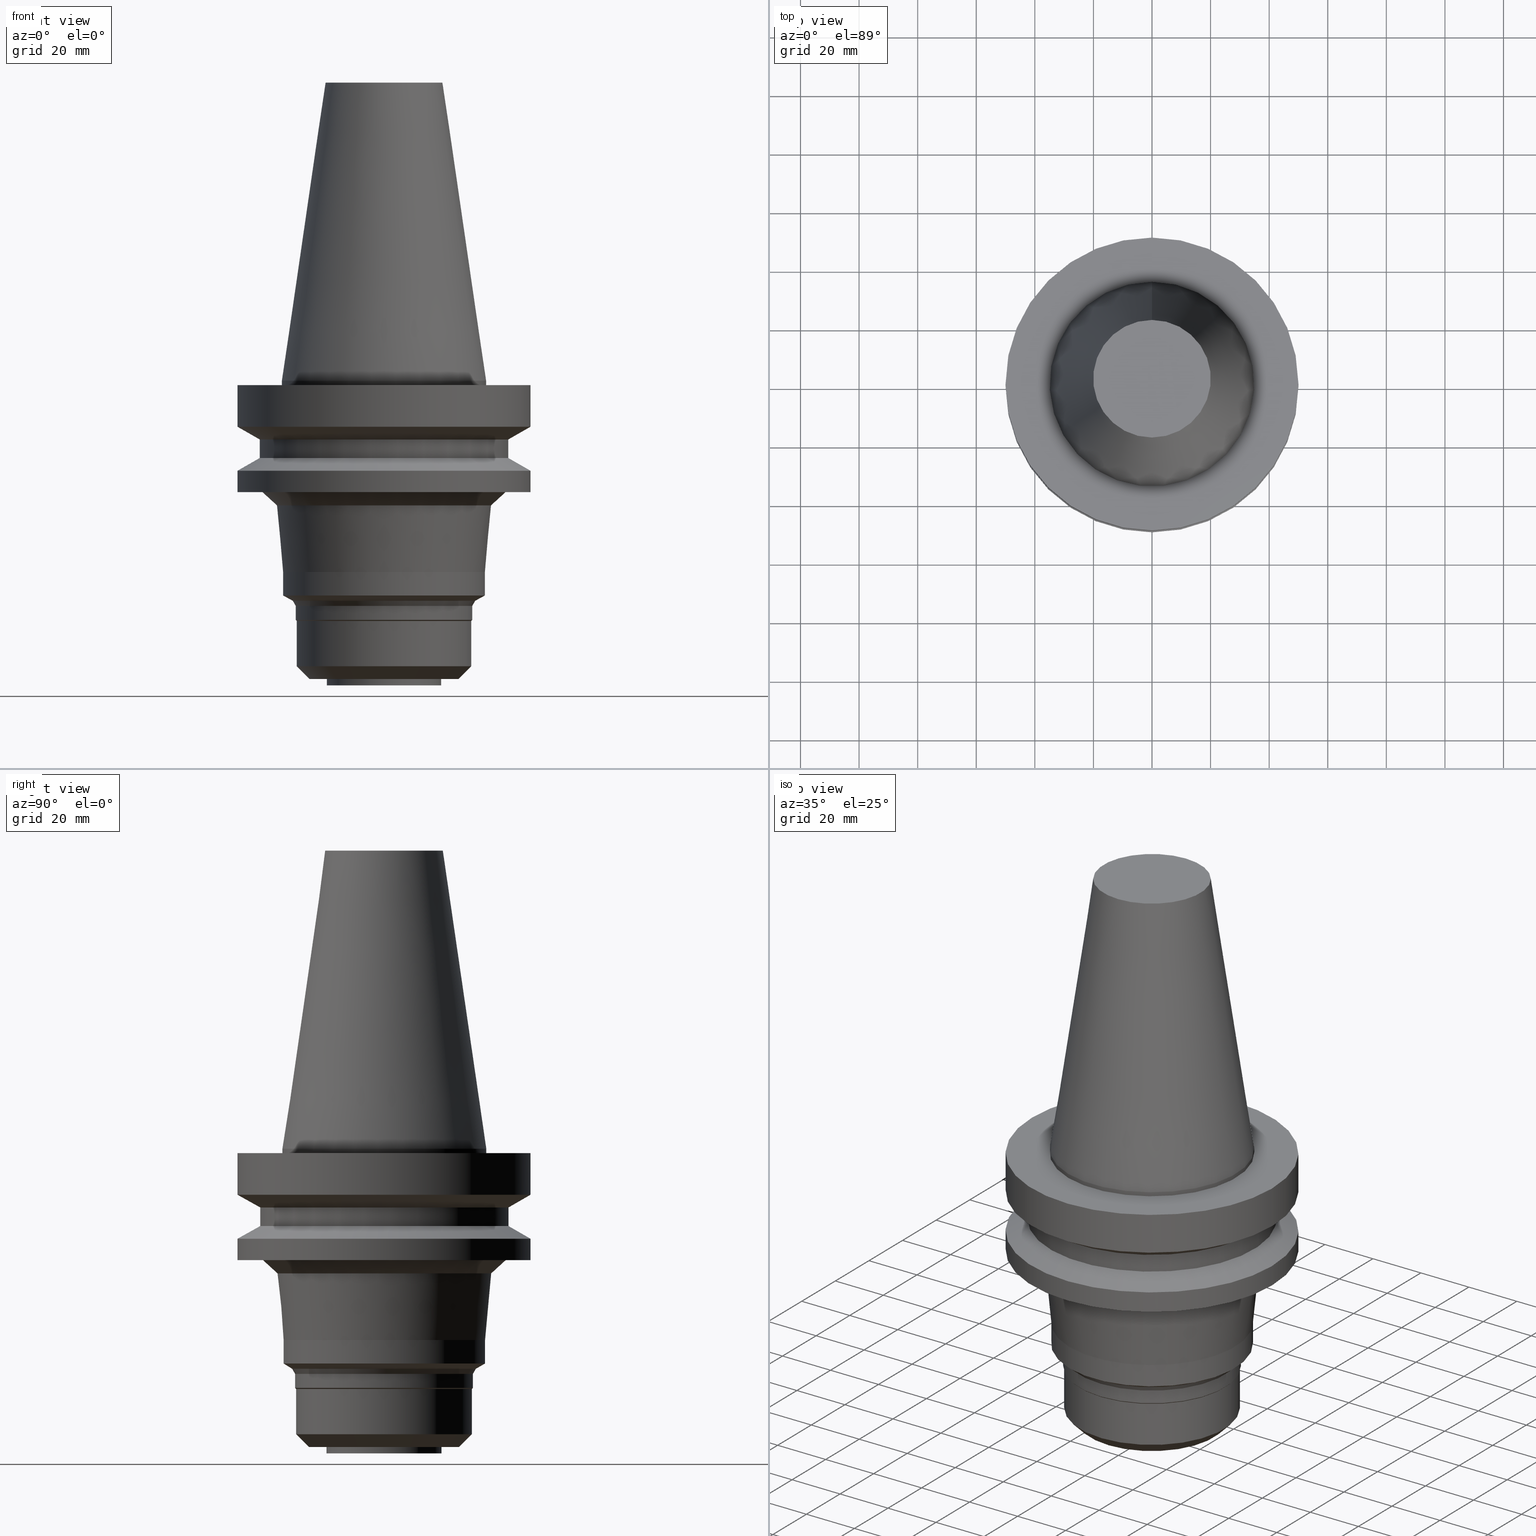
[diagram: canonical four-view strip — front | top / right | iso, engineering-drawing reading convention]
A machine part, canonical four-view strip (front | top / right | iso — engineering-drawing reading convention). The complete STEP part file that produces these views, byte-faithful:
ISO-10303-21;
HEADER;
FILE_DESCRIPTION((''),'1');
FILE_NAME('V:/90_\X2\53D65F9730C730FC30BF\X0\/00_\X2\6DE18DEF30C730FC30BF\X0\/ALL/BBT-BKUS\X2\FF76FF80FF9BFF78FF9E752852A05DE556F3\X0\201801/BBT50-MEGADS/BBT50-MEGA.750DS-4.stp','2018-02-05T01:23:30',(''),(''),'Spatial Interop R21 SP3','Kubotek KeyCreator 2011 V10.0.2 (22737)',' ');
FILE_SCHEMA(('automotive_design'));
ENDSEC;
DATA;
#1=MECHANICAL_DESIGN_GEOMETRIC_PRESENTATION_REPRESENTATION(' ',(#10,#11,#12,#13,#14,#15,#16,#17,#18,#19,#20,#21,#22,#23,#24,#25,#26,#27,#28,#29,#30,#31,#32,#33,#34,#35,#36,#37,#38,#39,#40,#41,#42,#43,#44,#45,#46,#47,#48,#49,#50,#51,#52,#53),#6);
#2=PRODUCT_DEFINITION_CONTEXT('',#54,'design');
#3=APPLICATION_PROTOCOL_DEFINITION('INTERNATIONAL STANDARD','automotive_design',1994,#54);
#4=PRODUCT_CATEGORY_RELATIONSHIP('NONE','NONE',#55,#56);
#5=SHAPE_DEFINITION_REPRESENTATION(#57,#58);
#6= (GEOMETRIC_REPRESENTATION_CONTEXT(3)GLOBAL_UNCERTAINTY_ASSIGNED_CONTEXT((#61))GLOBAL_UNIT_ASSIGNED_CONTEXT((#63,#64,#65))REPRESENTATION_CONTEXT('NONE','WORKSPACE'));
#10=STYLED_ITEM('',(#67),#68);
#11=STYLED_ITEM('',(#69,#70),#71);
#12=STYLED_ITEM('',(#72,#73),#74);
#13=STYLED_ITEM('',(#75),#76);
#14=STYLED_ITEM('',(#77),#78);
#15=STYLED_ITEM('',(#79),#80);
#16=STYLED_ITEM('',(#81),#82);
#17=STYLED_ITEM('',(#83),#84);
#18=STYLED_ITEM('',(#85),#86);
#19=STYLED_ITEM('',(#87,#88),#89);
#20=STYLED_ITEM('',(#90),#91);
#21=STYLED_ITEM('',(#92,#93),#94);
#22=STYLED_ITEM('',(#95,#96),#97);
#23=STYLED_ITEM('',(#98),#99);
#24=STYLED_ITEM('',(#100,#101),#102);
#25=STYLED_ITEM('',(#103,#104),#105);
#26=STYLED_ITEM('',(#106),#107);
#27=STYLED_ITEM('',(#108),#109);
#28=STYLED_ITEM('',(#110),#111);
#29=STYLED_ITEM('',(#112),#113);
#30=STYLED_ITEM('',(#114,#115),#116);
#31=STYLED_ITEM('',(#117,#118),#119);
#32=STYLED_ITEM('',(#120,#121),#122);
#33=STYLED_ITEM('',(#123),#124);
#34=STYLED_ITEM('',(#125,#126),#127);
#35=STYLED_ITEM('',(#128,#129),#130);
#36=STYLED_ITEM('',(#131,#132),#133);
#37=STYLED_ITEM('',(#134),#135);
#38=STYLED_ITEM('',(#136,#137),#138);
#39=STYLED_ITEM('',(#139),#140);
#40=STYLED_ITEM('',(#141,#142),#143);
#41=STYLED_ITEM('',(#144,#145),#146);
#42=STYLED_ITEM('',(#147,#148),#149);
#43=STYLED_ITEM('',(#150,#151),#152);
#44=STYLED_ITEM('',(#153),#154);
#45=STYLED_ITEM('',(#155),#156);
#46=STYLED_ITEM('',(#157),#158);
#47=STYLED_ITEM('',(#159),#160);
#48=STYLED_ITEM('',(#161,#162),#163);
#49=STYLED_ITEM('',(#164,#165),#166);
#50=STYLED_ITEM('',(#167,#168),#169);
#51=STYLED_ITEM('',(#170,#171),#172);
#52=STYLED_ITEM('',(#173,#174),#175);
#53=STYLED_ITEM('',(#176),#177);
#54=APPLICATION_CONTEXT(' ');
#55=PRODUCT_CATEGORY('part','NONE');
#56=PRODUCT_RELATED_PRODUCT_CATEGORY('detail',' ',(#178));
#57=PRODUCT_DEFINITION_SHAPE('NONE','NONE',#179);
#58=ADVANCED_BREP_SHAPE_REPRESENTATION('Unnamed[1]',(#89,#180),#6);
#61=UNCERTAINTY_MEASURE_WITH_UNIT(LENGTH_MEASURE(1.0E-006),#63,'','');
#63= (CONVERSION_BASED_UNIT('MILLIMETRE',#183)LENGTH_UNIT()NAMED_UNIT(#186));
#64= (NAMED_UNIT(#188)PLANE_ANGLE_UNIT()SI_UNIT($,.RADIAN.));
#65= (NAMED_UNIT(#188)SOLID_ANGLE_UNIT()SI_UNIT($,.STERADIAN.));
#67=PRESENTATION_STYLE_ASSIGNMENT((#194));
#68=EDGE_CURVE('Unnamed[1]',#195,#195,#196,.T.);
#69=PRESENTATION_STYLE_ASSIGNMENT((#197));
#70=PRESENTATION_STYLE_ASSIGNMENT((#198));
#71=ADVANCED_FACE('Unnamed[1]',(#199),#200,.T.);
#72=PRESENTATION_STYLE_ASSIGNMENT((#201));
#73=PRESENTATION_STYLE_ASSIGNMENT((#202));
#74=ADVANCED_FACE('Unnamed[1]',(#203,#204),#205,.T.);
#75=PRESENTATION_STYLE_ASSIGNMENT((#206));
#76=EDGE_CURVE('Unnamed[1]',#207,#207,#208,.T.);
#77=PRESENTATION_STYLE_ASSIGNMENT((#209));
#78=EDGE_CURVE('Unnamed[1]',#210,#210,#211,.T.);
#79=PRESENTATION_STYLE_ASSIGNMENT((#212));
#80=EDGE_CURVE('Unnamed[1]',#213,#213,#214,.T.);
#81=PRESENTATION_STYLE_ASSIGNMENT((#215));
#82=EDGE_CURVE('Unnamed[1]',#216,#216,#217,.T.);
#83=PRESENTATION_STYLE_ASSIGNMENT((#218));
#84=EDGE_CURVE('Unnamed[1]',#219,#219,#220,.T.);
#85=PRESENTATION_STYLE_ASSIGNMENT((#221));
#86=EDGE_CURVE('Unnamed[1]',#222,#222,#223,.T.);
#87=PRESENTATION_STYLE_ASSIGNMENT((#224));
#88=PRESENTATION_STYLE_ASSIGNMENT((#225));
#89=MANIFOLD_SOLID_BREP('Unnamed[1]',#226);
#90=PRESENTATION_STYLE_ASSIGNMENT((#227));
#91=EDGE_CURVE('Unnamed[1]',#228,#228,#229,.T.);
#92=PRESENTATION_STYLE_ASSIGNMENT((#230));
#93=PRESENTATION_STYLE_ASSIGNMENT((#231));
#94=ADVANCED_FACE('Unnamed[1]',(#232,#233),#234,.T.);
#95=PRESENTATION_STYLE_ASSIGNMENT((#235));
#96=PRESENTATION_STYLE_ASSIGNMENT((#236));
#97=ADVANCED_FACE('Unnamed[1]',(#237,#238),#239,.T.);
#98=PRESENTATION_STYLE_ASSIGNMENT((#240));
#99=EDGE_CURVE('Unnamed[1]',#241,#241,#242,.T.);
#100=PRESENTATION_STYLE_ASSIGNMENT((#243));
#101=PRESENTATION_STYLE_ASSIGNMENT((#244));
#102=ADVANCED_FACE('Unnamed[1]',(#245,#246),#247,.T.);
#103=PRESENTATION_STYLE_ASSIGNMENT((#248));
#104=PRESENTATION_STYLE_ASSIGNMENT((#249));
#105=ADVANCED_FACE('Unnamed[1]',(#250,#251),#252,.T.);
#106=PRESENTATION_STYLE_ASSIGNMENT((#253));
#107=EDGE_CURVE('Unnamed[1]',#254,#254,#255,.T.);
#108=PRESENTATION_STYLE_ASSIGNMENT((#256));
#109=EDGE_CURVE('Unnamed[1]',#257,#257,#258,.T.);
#110=PRESENTATION_STYLE_ASSIGNMENT((#259));
#111=EDGE_CURVE('Unnamed[1]',#260,#260,#261,.T.);
#112=PRESENTATION_STYLE_ASSIGNMENT((#262));
#113=EDGE_CURVE('Unnamed[1]',#263,#263,#264,.T.);
#114=PRESENTATION_STYLE_ASSIGNMENT((#265));
#115=PRESENTATION_STYLE_ASSIGNMENT((#266));
#116=ADVANCED_FACE('Unnamed[1]',(#267,#268),#269,.T.);
#117=PRESENTATION_STYLE_ASSIGNMENT((#270));
#118=PRESENTATION_STYLE_ASSIGNMENT((#271));
#119=ADVANCED_FACE('Unnamed[1]',(#272,#273),#274,.T.);
#120=PRESENTATION_STYLE_ASSIGNMENT((#275));
#121=PRESENTATION_STYLE_ASSIGNMENT((#276));
#122=ADVANCED_FACE('Unnamed[1]',(#277,#278),#279,.T.);
#123=PRESENTATION_STYLE_ASSIGNMENT((#280));
#124=EDGE_CURVE('Unnamed[1]',#281,#281,#282,.T.);
#125=PRESENTATION_STYLE_ASSIGNMENT((#283));
#126=PRESENTATION_STYLE_ASSIGNMENT((#284));
#127=ADVANCED_FACE('Unnamed[1]',(#285,#286),#287,.T.);
#128=PRESENTATION_STYLE_ASSIGNMENT((#288));
#129=PRESENTATION_STYLE_ASSIGNMENT((#289));
#130=ADVANCED_FACE('Unnamed[1]',(#290,#291),#292,.T.);
#131=PRESENTATION_STYLE_ASSIGNMENT((#293));
#132=PRESENTATION_STYLE_ASSIGNMENT((#294));
#133=ADVANCED_FACE('Unnamed[1]',(#295,#296),#297,.T.);
#134=PRESENTATION_STYLE_ASSIGNMENT((#298));
#135=EDGE_CURVE('Unnamed[1]',#299,#299,#300,.T.);
#136=PRESENTATION_STYLE_ASSIGNMENT((#301));
#137=PRESENTATION_STYLE_ASSIGNMENT((#302));
#138=ADVANCED_FACE('Unnamed[1]',(#303,#304),#305,.T.);
#139=PRESENTATION_STYLE_ASSIGNMENT((#306));
#140=EDGE_CURVE('Unnamed[1]',#307,#307,#308,.T.);
#141=PRESENTATION_STYLE_ASSIGNMENT((#309));
#142=PRESENTATION_STYLE_ASSIGNMENT((#310));
#143=ADVANCED_FACE('Unnamed[1]',(#311,#312),#313,.T.);
#144=PRESENTATION_STYLE_ASSIGNMENT((#314));
#145=PRESENTATION_STYLE_ASSIGNMENT((#315));
#146=ADVANCED_FACE('Unnamed[1]',(#316,#317),#318,.T.);
#147=PRESENTATION_STYLE_ASSIGNMENT((#319));
#148=PRESENTATION_STYLE_ASSIGNMENT((#320));
#149=ADVANCED_FACE('Unnamed[1]',(#321,#322),#323,.T.);
#150=PRESENTATION_STYLE_ASSIGNMENT((#324));
#151=PRESENTATION_STYLE_ASSIGNMENT((#325));
#152=ADVANCED_FACE('Unnamed[1]',(#326),#327,.T.);
#153=PRESENTATION_STYLE_ASSIGNMENT((#328));
#154=EDGE_CURVE('Unnamed[1]',#329,#329,#330,.T.);
#155=PRESENTATION_STYLE_ASSIGNMENT((#331));
#156=EDGE_CURVE('Unnamed[1]',#332,#332,#333,.T.);
#157=PRESENTATION_STYLE_ASSIGNMENT((#334));
#158=EDGE_CURVE('Unnamed[1]',#335,#335,#336,.T.);
#159=PRESENTATION_STYLE_ASSIGNMENT((#337));
#160=EDGE_CURVE('Unnamed[1]',#338,#338,#339,.T.);
#161=PRESENTATION_STYLE_ASSIGNMENT((#340));
#162=PRESENTATION_STYLE_ASSIGNMENT((#341));
#163=ADVANCED_FACE('Unnamed[1]',(#342,#343),#344,.T.);
#164=PRESENTATION_STYLE_ASSIGNMENT((#345));
#165=PRESENTATION_STYLE_ASSIGNMENT((#346));
#166=ADVANCED_FACE('Unnamed[1]',(#347,#348),#349,.T.);
#167=PRESENTATION_STYLE_ASSIGNMENT((#350));
#168=PRESENTATION_STYLE_ASSIGNMENT((#351));
#169=ADVANCED_FACE('Unnamed[1]',(#352,#353),#354,.T.);
#170=PRESENTATION_STYLE_ASSIGNMENT((#355));
#171=PRESENTATION_STYLE_ASSIGNMENT((#356));
#172=ADVANCED_FACE('Unnamed[1]',(#357,#358),#359,.T.);
#173=PRESENTATION_STYLE_ASSIGNMENT((#360));
#174=PRESENTATION_STYLE_ASSIGNMENT((#361));
#175=ADVANCED_FACE('Unnamed[1]',(#362,#363),#364,.T.);
#176=PRESENTATION_STYLE_ASSIGNMENT((#365));
#177=EDGE_CURVE('Unnamed[1]',#366,#366,#367,.T.);
#178=PRODUCT('Unnamed[1]','Unnamed[1]','PART-Unnamed[1]-DESC',(#368));
#179=PRODUCT_DEFINITION('NONE','NONE',#369,#2);
#180=AXIS2_PLACEMENT_3D('',#370,#371,#372);
#183=LENGTH_MEASURE_WITH_UNIT(LENGTH_MEASURE(1.0),#373);
#186=DIMENSIONAL_EXPONENTS(1.0,0.0,0.0,0.0,0.0,0.0,0.0);
#188=DIMENSIONAL_EXPONENTS(0.0,0.0,0.0,0.0,0.0,0.0,0.0);
#194=CURVE_STYLE('',#374,POSITIVE_LENGTH_MEASURE(1000.0),#375);
#195=VERTEX_POINT('',#376);
#196=CIRCLE('',#377,34.4999999999997);
#197=SURFACE_STYLE_USAGE(.BOTH.,#378);
#198=CURVE_STYLE('',#379,POSITIVE_LENGTH_MEASURE(1000.0),#380);
#199=FACE_OUTER_BOUND('',#381,.T.);
#200=PLANE('',#382);
#201=SURFACE_STYLE_USAGE(.BOTH.,#383);
#202=CURVE_STYLE('',#384,POSITIVE_LENGTH_MEASURE(1000.0),#385);
#203=FACE_BOUND('',#386,.T.);
#204=FACE_BOUND('',#387,.T.);
#205=CONICAL_SURFACE('',#388,32.9249999999997,1.04719755119622);
#206=CURVE_STYLE('',#389,POSITIVE_LENGTH_MEASURE(1000.0),#390);
#207=VERTEX_POINT('',#391);
#208=CIRCLE('',#392,34.925);
#209=CURVE_STYLE('',#393,POSITIVE_LENGTH_MEASURE(1000.0),#394);
#210=VERTEX_POINT('',#395);
#211=CIRCLE('',#396,30.3500000000003);
#212=CURVE_STYLE('',#397,POSITIVE_LENGTH_MEASURE(1000.0),#398);
#213=VERTEX_POINT('',#399);
#214=CIRCLE('',#400,30.0000000000001);
#215=CURVE_STYLE('',#401,POSITIVE_LENGTH_MEASURE(1000.0),#402);
#216=VERTEX_POINT('',#403);
#217=CIRCLE('',#404,36.5837822119292);
#218=CURVE_STYLE('',#405,POSITIVE_LENGTH_MEASURE(1000.0),#406);
#219=VERTEX_POINT('',#407);
#220=CIRCLE('',#408,50.0);
#221=CURVE_STYLE('',#409,POSITIVE_LENGTH_MEASURE(1000.0),#410);
#222=VERTEX_POINT('',#411);
#223=CIRCLE('',#412,20.0791666651884);
#224=SURFACE_STYLE_USAGE(.BOTH.,#413);
#225=CURVE_STYLE('',#414,POSITIVE_LENGTH_MEASURE(1000.0),#415);
#226=CLOSED_SHELL('',(#71,#94,#175,#146,#97,#163,#172,#138,#133,#166,#149,#116,#169,#74,#119,#130,#122,#105,#102,#127,#143,#152));
#227=CURVE_STYLE('',#416,POSITIVE_LENGTH_MEASURE(1000.0),#417);
#228=VERTEX_POINT('',#418);
#229=CIRCLE('',#419,19.625107076497);
#230=SURFACE_STYLE_USAGE(.BOTH.,#420);
#231=CURVE_STYLE('',#421,POSITIVE_LENGTH_MEASURE(1000.0),#422);
#232=FACE_BOUND('',#423,.T.);
#233=FACE_BOUND('',#424,.T.);
#234=CONICAL_SURFACE('',#425,27.5020833325942,0.144812498253157);
#235=SURFACE_STYLE_USAGE(.BOTH.,#426);
#236=CURVE_STYLE('',#427,POSITIVE_LENGTH_MEASURE(1000.0),#428);
#237=FACE_BOUND('',#429,.T.);
#238=FACE_BOUND('',#430,.T.);
#239=CYLINDRICAL_SURFACE('',#431,50.0);
#240=CURVE_STYLE('',#432,POSITIVE_LENGTH_MEASURE(1000.0),#433);
#241=VERTEX_POINT('',#434);
#242=CIRCLE('',#435,25.6553860970346);
#243=SURFACE_STYLE_USAGE(.BOTH.,#436);
#244=CURVE_STYLE('',#437,POSITIVE_LENGTH_MEASURE(1000.0),#438);
#245=FACE_BOUND('',#439,.T.);
#246=FACE_BOUND('',#440,.T.);
#247=CONICAL_SURFACE('',#441,27.8276930485173,0.785398163397472);
#248=SURFACE_STYLE_USAGE(.BOTH.,#442);
#249=CURVE_STYLE('',#443,POSITIVE_LENGTH_MEASURE(1000.0),#444);
#250=FACE_BOUND('',#445,.T.);
#251=FACE_BOUND('',#446,.T.);
#252=CYLINDRICAL_SURFACE('',#447,30.0000000000001);
#253=CURVE_STYLE('',#448,POSITIVE_LENGTH_MEASURE(1000.0),#449);
#254=VERTEX_POINT('',#450);
#255=CIRCLE('',#451,42.5);
#256=CURVE_STYLE('',#452,POSITIVE_LENGTH_MEASURE(1000.0),#453);
#257=VERTEX_POINT('',#454);
#258=CIRCLE('',#455,30.3499999999999);
#259=CURVE_STYLE('',#456,POSITIVE_LENGTH_MEASURE(1000.0),#457);
#260=VERTEX_POINT('',#458);
#261=CIRCLE('',#459,50.0);
#262=CURVE_STYLE('',#460,POSITIVE_LENGTH_MEASURE(1000.0),#461);
#263=VERTEX_POINT('',#462);
#264=CIRCLE('',#463,41.5643345023417);
#265=SURFACE_STYLE_USAGE(.BOTH.,#464);
#266=CURVE_STYLE('',#465,POSITIVE_LENGTH_MEASURE(1000.0),#466);
#267=FACE_BOUND('',#467,.T.);
#268=FACE_BOUND('',#468,.T.);
#269=CONICAL_SURFACE('',#469,35.5418911059647,0.0913203890861967);
#270=SURFACE_STYLE_USAGE(.BOTH.,#470);
#271=CURVE_STYLE('',#471,POSITIVE_LENGTH_MEASURE(1000.0),#472);
#272=FACE_BOUND('',#473,.T.);
#273=FACE_BOUND('',#474,.T.);
#274=CONICAL_SURFACE('',#475,30.85,0.52359877559814);
#275=SURFACE_STYLE_USAGE(.BOTH.,#476);
#276=CURVE_STYLE('',#477,POSITIVE_LENGTH_MEASURE(1000.0),#478);
#277=FACE_BOUND('',#479,.T.);
#278=FACE_BOUND('',#480,.T.);
#279=CONICAL_SURFACE('',#481,30.175,0.785398163396494);
#280=CURVE_STYLE('',#482,POSITIVE_LENGTH_MEASURE(1000.0),#483);
#281=VERTEX_POINT('',#484);
#282=CIRCLE('',#485,31.3499999999997);
#283=SURFACE_STYLE_USAGE(.BOTH.,#486);
#284=CURVE_STYLE('',#487,POSITIVE_LENGTH_MEASURE(1000.0),#488);
#285=FACE_BOUND('',#489,.T.);
#286=FACE_OUTER_BOUND('',#490,.T.);
#287=PLANE('',#491);
#288=SURFACE_STYLE_USAGE(.BOTH.,#492);
#289=CURVE_STYLE('',#493,POSITIVE_LENGTH_MEASURE(1000.0),#494);
#290=FACE_BOUND('',#495,.T.);
#291=FACE_BOUND('',#496,.T.);
#292=CYLINDRICAL_SURFACE('',#497,30.3500000000001);
#293=SURFACE_STYLE_USAGE(.BOTH.,#498);
#294=CURVE_STYLE('',#499,POSITIVE_LENGTH_MEASURE(1000.0),#500);
#295=FACE_BOUND('',#501,.T.);
#296=FACE_BOUND('',#502,.T.);
#297=CYLINDRICAL_SURFACE('',#503,50.0);
#298=CURVE_STYLE('',#504,POSITIVE_LENGTH_MEASURE(1000.0),#505);
#299=VERTEX_POINT('',#506);
#300=CIRCLE('',#507,34.925);
#301=SURFACE_STYLE_USAGE(.BOTH.,#508);
#302=CURVE_STYLE('',#509,POSITIVE_LENGTH_MEASURE(1000.0),#510);
#303=FACE_BOUND('',#511,.T.);
#304=FACE_BOUND('',#512,.T.);
#305=CONICAL_SURFACE('',#513,46.25,1.04719755108882);
#306=CURVE_STYLE('',#514,POSITIVE_LENGTH_MEASURE(1000.0),#515);
#307=VERTEX_POINT('',#516);
#308=CIRCLE('',#517,42.5);
#309=SURFACE_STYLE_USAGE(.BOTH.,#518);
#310=CURVE_STYLE('',#519,POSITIVE_LENGTH_MEASURE(1000.0),#520);
#311=FACE_BOUND('',#521,.T.);
#312=FACE_BOUND('',#522,.T.);
#313=CYLINDRICAL_SURFACE('',#523,19.625107076497);
#314=SURFACE_STYLE_USAGE(.BOTH.,#524);
#315=CURVE_STYLE('',#525,POSITIVE_LENGTH_MEASURE(1000.0),#526);
#316=FACE_OUTER_BOUND('',#527,.T.);
#317=FACE_BOUND('',#528,.T.);
#318=PLANE('',#529);
#319=SURFACE_STYLE_USAGE(.BOTH.,#530);
#320=CURVE_STYLE('',#531,POSITIVE_LENGTH_MEASURE(1000.0),#532);
#321=FACE_BOUND('',#533,.T.);
#322=FACE_BOUND('',#534,.T.);
#323=CONICAL_SURFACE('',#535,39.0740583571355,0.831080197610468);
#324=SURFACE_STYLE_USAGE(.BOTH.,#536);
#325=CURVE_STYLE('',#537,POSITIVE_LENGTH_MEASURE(1000.0),#538);
#326=FACE_OUTER_BOUND('',#539,.T.);
#327=PLANE('',#540);
#328=CURVE_STYLE('',#541,POSITIVE_LENGTH_MEASURE(1000.0),#542);
#329=VERTEX_POINT('',#543);
#330=CIRCLE('',#544,50.0);
#331=CURVE_STYLE('',#545,POSITIVE_LENGTH_MEASURE(1000.0),#546);
#332=VERTEX_POINT('',#547);
#333=CIRCLE('',#548,34.5000000000001);
#334=CURVE_STYLE('',#549,POSITIVE_LENGTH_MEASURE(1000.0),#550);
#335=VERTEX_POINT('',#551);
#336=CIRCLE('',#552,30.0);
#337=CURVE_STYLE('',#553,POSITIVE_LENGTH_MEASURE(1000.0),#554);
#338=VERTEX_POINT('',#555);
#339=CIRCLE('',#556,19.625107076497);
#340=SURFACE_STYLE_USAGE(.BOTH.,#557);
#341=CURVE_STYLE('',#558,POSITIVE_LENGTH_MEASURE(1000.0),#559);
#342=FACE_BOUND('',#560,.T.);
#343=FACE_BOUND('',#561,.T.);
#344=CONICAL_SURFACE('',#562,46.25,1.04719755108882);
#345=SURFACE_STYLE_USAGE(.BOTH.,#563);
#346=CURVE_STYLE('',#564,POSITIVE_LENGTH_MEASURE(1000.0),#565);
#347=FACE_BOUND('',#566,.T.);
#348=FACE_OUTER_BOUND('',#567,.T.);
#349=PLANE('',#568);
#350=SURFACE_STYLE_USAGE(.BOTH.,#569);
#351=CURVE_STYLE('',#570,POSITIVE_LENGTH_MEASURE(1000.0),#571);
#352=FACE_BOUND('',#572,.T.);
#353=FACE_BOUND('',#573,.T.);
#354=CYLINDRICAL_SURFACE('',#574,34.4999999999999);
#355=SURFACE_STYLE_USAGE(.BOTH.,#575);
#356=CURVE_STYLE('',#576,POSITIVE_LENGTH_MEASURE(1000.0),#577);
#357=FACE_BOUND('',#578,.T.);
#358=FACE_BOUND('',#579,.T.);
#359=CYLINDRICAL_SURFACE('',#580,42.5);
#360=SURFACE_STYLE_USAGE(.BOTH.,#581);
#361=CURVE_STYLE('',#582,POSITIVE_LENGTH_MEASURE(1000.0),#583);
#362=FACE_BOUND('',#584,.T.);
#363=FACE_BOUND('',#585,.T.);
#364=CYLINDRICAL_SURFACE('',#586,34.925);
#365=CURVE_STYLE('',#587,POSITIVE_LENGTH_MEASURE(1000.0),#588);
#366=VERTEX_POINT('',#589);
#367=CIRCLE('',#590,50.0);
#368=PRODUCT_CONTEXT('',#54,'mechanical');
#369=PRODUCT_DEFINITION_FORMATION_WITH_SPECIFIED_SOURCE(' ','NONE',#178,.NOT_KNOWN.);
#370=CARTESIAN_POINT('',(0.0,0.0,0.0));
#371=DIRECTION('',(0.0,0.0,1.0));
#372=DIRECTION('',(1.0,0.0,0.0));
#373= (NAMED_UNIT(#186)LENGTH_UNIT()SI_UNIT(.MILLI.,.METRE.));
#374=DRAUGHTING_PRE_DEFINED_CURVE_FONT('continuous');
#375=COLOUR_RGB('',0.0,1.0,0.0);
#376=CARTESIAN_POINT('',(4.48833051887502E-015,34.4999999999997,-73.2999999999996));
#377=AXIS2_PLACEMENT_3D('',#592,#593,#594);
#378=SURFACE_SIDE_STYLE('',(#595));
#379=DRAUGHTING_PRE_DEFINED_CURVE_FONT('continuous');
#380=COLOUR_RGB('',0.0,1.0,0.0);
#381=EDGE_LOOP('',(#596));
#382=AXIS2_PLACEMENT_3D('',#597,#598,#599);
#383=SURFACE_SIDE_STYLE('',(#600));
#384=DRAUGHTING_PRE_DEFINED_CURVE_FONT('continuous');
#385=COLOUR_RGB('',0.0,1.0,0.0);
#386=EDGE_LOOP('',(#601));
#387=EDGE_LOOP('',(#602));
#388=AXIS2_PLACEMENT_3D('',#603,#604,#605);
#389=DRAUGHTING_PRE_DEFINED_CURVE_FONT('continuous');
#390=COLOUR_RGB('',0.0,1.0,0.0);
#391=CARTESIAN_POINT('',(9.18485099360511E-017,34.925,-1.5));
#392=AXIS2_PLACEMENT_3D('',#606,#607,#608);
#393=DRAUGHTING_PRE_DEFINED_CURVE_FONT('continuous');
#394=COLOUR_RGB('',0.0,1.0,0.0);
#395=CARTESIAN_POINT('',(4.7057484428137E-015,30.3500000000003,-76.8507041555169));
#396=AXIS2_PLACEMENT_3D('',#609,#610,#611);
#397=DRAUGHTING_PRE_DEFINED_CURVE_FONT('continuous');
#398=COLOUR_RGB('',0.0,1.0,0.0);
#399=CARTESIAN_POINT('',(5.02080716863011E-015,30.0000000000001,-81.9960036171374));
#400=AXIS2_PLACEMENT_3D('',#612,#613,#614);
#401=DRAUGHTING_PRE_DEFINED_CURVE_FONT('continuous');
#402=COLOUR_RGB('',0.0,1.0,0.0);
#403=CARTESIAN_POINT('',(2.60513591930226E-015,36.5837822119292,-42.5450982457318));
#404=AXIS2_PLACEMENT_3D('',#615,#616,#617);
#405=DRAUGHTING_PRE_DEFINED_CURVE_FONT('continuous');
#406=COLOUR_RGB('',0.0,1.0,0.0);
#407=CARTESIAN_POINT('',(2.32682891837996E-015,50.0,-37.9999999999998));
#408=AXIS2_PLACEMENT_3D('',#618,#619,#620);
#409=DRAUGHTING_PRE_DEFINED_CURVE_FONT('continuous');
#410=COLOUR_RGB('',0.0,1.0,0.0);
#411=CARTESIAN_POINT('',(-6.23345220766003E-015,20.0791666651884,101.8));
#412=AXIS2_PLACEMENT_3D('',#621,#622,#623);
#413=SURFACE_SIDE_STYLE('',(#624));
#414=DRAUGHTING_PRE_DEFINED_CURVE_FONT('continuous');
#415=COLOUR_RGB('',0.0,1.0,0.0);
#416=DRAUGHTING_PRE_DEFINED_CURVE_FONT('continuous');
#417=COLOUR_RGB('',0.0,1.0,0.0);
#418=CARTESIAN_POINT('',(6.36816335556624E-015,19.6251070764971,-104.0));
#419=AXIS2_PLACEMENT_3D('',#625,#626,#627);
#420=SURFACE_SIDE_STYLE('',(#628));
#421=DRAUGHTING_PRE_DEFINED_CURVE_FONT('continuous');
#422=COLOUR_RGB('',0.0,1.0,0.0);
#423=EDGE_LOOP('',(#629));
#424=EDGE_LOOP('',(#630));
#425=AXIS2_PLACEMENT_3D('',#631,#632,#633);
#426=SURFACE_SIDE_STYLE('',(#634));
#427=DRAUGHTING_PRE_DEFINED_CURVE_FONT('continuous');
#428=COLOUR_RGB('',0.0,1.0,0.0);
#429=EDGE_LOOP('',(#635));
#430=EDGE_LOOP('',(#636));
#431=AXIS2_PLACEMENT_3D('',#637,#638,#639);
#432=DRAUGHTING_PRE_DEFINED_CURVE_FONT('continuous');
#433=COLOUR_RGB('',0.0,1.0,0.0);
#434=CARTESIAN_POINT('',(6.23345220766002E-015,25.6553860970346,-101.8));
#435=AXIS2_PLACEMENT_3D('',#640,#641,#642);
#436=SURFACE_SIDE_STYLE('',(#643));
#437=DRAUGHTING_PRE_DEFINED_CURVE_FONT('continuous');
#438=COLOUR_RGB('',0.0,1.0,0.0);
#439=EDGE_LOOP('',(#644));
#440=EDGE_LOOP('',(#645));
#441=AXIS2_PLACEMENT_3D('',#646,#647,#648);
#442=SURFACE_SIDE_STYLE('',(#649));
#443=DRAUGHTING_PRE_DEFINED_CURVE_FONT('continuous');
#444=COLOUR_RGB('',0.0,1.0,0.0);
#445=EDGE_LOOP('',(#650));
#446=EDGE_LOOP('',(#651));
#447=AXIS2_PLACEMENT_3D('',#652,#653,#654);
#448=DRAUGHTING_PRE_DEFINED_CURVE_FONT('continuous');
#449=COLOUR_RGB('',0.0,1.0,0.0);
#450=CARTESIAN_POINT('',(1.2264915470779E-015,42.5,-20.03012702));
#451=AXIS2_PLACEMENT_3D('',#655,#656,#657);
#452=DRAUGHTING_PRE_DEFINED_CURVE_FONT('continuous');
#453=COLOUR_RGB('',0.0,1.0,0.0);
#454=CARTESIAN_POINT('',(4.999375849645E-015,30.3499999999999,-81.6460036171369));
#455=AXIS2_PLACEMENT_3D('',#658,#659,#660);
#456=DRAUGHTING_PRE_DEFINED_CURVE_FONT('continuous');
#457=COLOUR_RGB('',0.0,1.0,0.0);
#458=CARTESIAN_POINT('',(9.61347737330674E-016,50.0,-15.7));
#459=AXIS2_PLACEMENT_3D('',#661,#662,#663);
#460=DRAUGHTING_PRE_DEFINED_CURVE_FONT('continuous');
#461=COLOUR_RGB('',0.0,1.0,0.0);
#462=CARTESIAN_POINT('',(2.32682891837996E-015,41.5643345023417,-37.9999999999998));
#463=AXIS2_PLACEMENT_3D('',#664,#665,#666);
#464=SURFACE_SIDE_STYLE('',(#667));
#465=DRAUGHTING_PRE_DEFINED_CURVE_FONT('continuous');
#466=COLOUR_RGB('',0.0,1.0,0.0);
#467=EDGE_LOOP('',(#668));
#468=EDGE_LOOP('',(#669));
#469=AXIS2_PLACEMENT_3D('',#670,#671,#672);
#470=SURFACE_SIDE_STYLE('',(#673));
#471=DRAUGHTING_PRE_DEFINED_CURVE_FONT('continuous');
#472=COLOUR_RGB('',0.0,1.0,0.0);
#473=EDGE_LOOP('',(#674));
#474=EDGE_LOOP('',(#675));
#475=AXIS2_PLACEMENT_3D('',#676,#677,#678);
#476=SURFACE_SIDE_STYLE('',(#679));
#477=DRAUGHTING_PRE_DEFINED_CURVE_FONT('continuous');
#478=COLOUR_RGB('',0.0,1.0,0.0);
#479=EDGE_LOOP('',(#680));
#480=EDGE_LOOP('',(#681));
#481=AXIS2_PLACEMENT_3D('',#682,#683,#684);
#482=DRAUGHTING_PRE_DEFINED_CURVE_FONT('continuous');
#483=COLOUR_RGB('',0.0,1.0,0.0);
#484=CARTESIAN_POINT('',(4.59969091894124E-015,31.3499999999997,-75.1186533479486));
#485=AXIS2_PLACEMENT_3D('',#685,#686,#687);
#486=SURFACE_SIDE_STYLE('',(#688));
#487=DRAUGHTING_PRE_DEFINED_CURVE_FONT('continuous');
#488=COLOUR_RGB('',0.0,1.0,0.0);
#489=EDGE_LOOP('',(#689));
#490=EDGE_LOOP('',(#690));
#491=AXIS2_PLACEMENT_3D('',#691,#692,#693);
#492=SURFACE_SIDE_STYLE('',(#694));
#493=DRAUGHTING_PRE_DEFINED_CURVE_FONT('continuous');
#494=COLOUR_RGB('',0.0,1.0,0.0);
#495=EDGE_LOOP('',(#695));
#496=EDGE_LOOP('',(#696));
#497=AXIS2_PLACEMENT_3D('',#697,#698,#699);
#498=SURFACE_SIDE_STYLE('',(#700));
#499=DRAUGHTING_PRE_DEFINED_CURVE_FONT('continuous');
#500=COLOUR_RGB('',0.0,1.0,0.0);
#501=EDGE_LOOP('',(#701));
#502=EDGE_LOOP('',(#702));
#503=AXIS2_PLACEMENT_3D('',#703,#704,#705);
#504=DRAUGHTING_PRE_DEFINED_CURVE_FONT('continuous');
#505=COLOUR_RGB('',0.0,1.0,0.0);
#506=CARTESIAN_POINT('',(-4.30483861169435E-031,34.925,4.27707894602213E-015));
#507=AXIS2_PLACEMENT_3D('',#706,#707,#708);
#508=SURFACE_SIDE_STYLE('',(#709));
#509=DRAUGHTING_PRE_DEFINED_CURVE_FONT('continuous');
#510=COLOUR_RGB('',0.0,1.0,0.0);
#511=EDGE_LOOP('',(#710));
#512=EDGE_LOOP('',(#711));
#513=AXIS2_PLACEMENT_3D('',#712,#713,#714);
#514=DRAUGHTING_PRE_DEFINED_CURVE_FONT('continuous');
#515=COLOUR_RGB('',0.0,1.0,0.0);
#516=CARTESIAN_POINT('',(1.61468902694397E-015,42.5,-26.3698729800001));
#517=AXIS2_PLACEMENT_3D('',#715,#716,#717);
#518=SURFACE_SIDE_STYLE('',(#718));
#519=DRAUGHTING_PRE_DEFINED_CURVE_FONT('continuous');
#520=COLOUR_RGB('',0.0,1.0,0.0);
#521=EDGE_LOOP('',(#719));
#522=EDGE_LOOP('',(#720));
#523=AXIS2_PLACEMENT_3D('',#721,#722,#723);
#524=SURFACE_SIDE_STYLE('',(#724));
#525=DRAUGHTING_PRE_DEFINED_CURVE_FONT('continuous');
#526=COLOUR_RGB('',0.0,1.0,0.0);
#527=EDGE_LOOP('',(#725));
#528=EDGE_LOOP('',(#726));
#529=AXIS2_PLACEMENT_3D('',#727,#728,#729);
#530=SURFACE_SIDE_STYLE('',(#730));
#531=DRAUGHTING_PRE_DEFINED_CURVE_FONT('continuous');
#532=COLOUR_RGB('',0.0,1.0,0.0);
#533=EDGE_LOOP('',(#731));
#534=EDGE_LOOP('',(#732));
#535=AXIS2_PLACEMENT_3D('',#733,#734,#735);
#536=SURFACE_SIDE_STYLE('',(#736));
#537=DRAUGHTING_PRE_DEFINED_CURVE_FONT('continuous');
#538=COLOUR_RGB('',0.0,1.0,0.0);
#539=EDGE_LOOP('',(#737));
#540=AXIS2_PLACEMENT_3D('',#738,#739,#740);
#541=DRAUGHTING_PRE_DEFINED_CURVE_FONT('continuous');
#542=COLOUR_RGB('',0.0,1.0,0.0);
#543=CARTESIAN_POINT('',(1.87983283669119E-015,50.0,-30.7000000000001));
#544=AXIS2_PLACEMENT_3D('',#741,#742,#743);
#545=DRAUGHTING_PRE_DEFINED_CURVE_FONT('continuous');
#546=COLOUR_RGB('',0.0,1.0,0.0);
#547=CARTESIAN_POINT('',(3.99847179921601E-015,34.5000000000001,-65.2999999999985));
#548=AXIS2_PLACEMENT_3D('',#744,#745,#746);
#549=DRAUGHTING_PRE_DEFINED_CURVE_FONT('continuous');
#550=COLOUR_RGB('',0.0,1.0,0.0);
#551=CARTESIAN_POINT('',(5.96742133217014E-015,30.0,-97.4553860970345));
#552=AXIS2_PLACEMENT_3D('',#747,#748,#749);
#553=DRAUGHTING_PRE_DEFINED_CURVE_FONT('continuous');
#554=COLOUR_RGB('',0.0,1.0,0.0);
#555=CARTESIAN_POINT('',(6.23345220766002E-015,19.625107076497,-101.8));
#556=AXIS2_PLACEMENT_3D('',#750,#751,#752);
#557=SURFACE_SIDE_STYLE('',(#753));
#558=DRAUGHTING_PRE_DEFINED_CURVE_FONT('continuous');
#559=COLOUR_RGB('',0.0,1.0,0.0);
#560=EDGE_LOOP('',(#754));
#561=EDGE_LOOP('',(#755));
#562=AXIS2_PLACEMENT_3D('',#756,#757,#758);
#563=SURFACE_SIDE_STYLE('',(#759));
#564=DRAUGHTING_PRE_DEFINED_CURVE_FONT('continuous');
#565=COLOUR_RGB('',0.0,1.0,0.0);
#566=EDGE_LOOP('',(#760));
#567=EDGE_LOOP('',(#761));
#568=AXIS2_PLACEMENT_3D('',#762,#763,#764);
#569=SURFACE_SIDE_STYLE('',(#765));
#570=DRAUGHTING_PRE_DEFINED_CURVE_FONT('continuous');
#571=COLOUR_RGB('',0.0,1.0,0.0);
#572=EDGE_LOOP('',(#766));
#573=EDGE_LOOP('',(#767));
#574=AXIS2_PLACEMENT_3D('',#768,#769,#770);
#575=SURFACE_SIDE_STYLE('',(#771));
#576=DRAUGHTING_PRE_DEFINED_CURVE_FONT('continuous');
#577=COLOUR_RGB('',0.0,1.0,0.0);
#578=EDGE_LOOP('',(#772));
#579=EDGE_LOOP('',(#773));
#580=AXIS2_PLACEMENT_3D('',#774,#775,#776);
#581=SURFACE_SIDE_STYLE('',(#777));
#582=DRAUGHTING_PRE_DEFINED_CURVE_FONT('continuous');
#583=COLOUR_RGB('',0.0,1.0,0.0);
#584=EDGE_LOOP('',(#778));
#585=EDGE_LOOP('',(#779));
#586=AXIS2_PLACEMENT_3D('',#780,#781,#782);
#587=DRAUGHTING_PRE_DEFINED_CURVE_FONT('continuous');
#588=COLOUR_RGB('',0.0,1.0,0.0);
#589=CARTESIAN_POINT('',(9.18485099360509E-017,50.0,-1.49999999999999));
#590=AXIS2_PLACEMENT_3D('',#783,#784,#785);
#592=CARTESIAN_POINT('',(4.48833051887503E-015,8.97666103775005E-015,-73.2999999999996));
#593=DIRECTION('',(6.12323399573677E-017,1.22464679914717E-016,-1.0));
#594=DIRECTION('',(-1.23259516440784E-032,1.0,1.22464679914717E-016));
#595=SURFACE_STYLE_FILL_AREA(#786);
#596=ORIENTED_EDGE('',*,*,#86,.F.);
#597=CARTESIAN_POINT('',(-6.23345220766003E-015,10.0395833325942,101.8));
#598=DIRECTION('',(-6.12323399573677E-017,-1.22464679914735E-016,1.0));
#599=DIRECTION('',(1.23259516440783E-032,-1.0,-1.22464679914735E-016));
#600=SURFACE_STYLE_FILL_AREA(#787);
#601=ORIENTED_EDGE('',*,*,#124,.F.);
#602=ORIENTED_EDGE('',*,*,#68,.T.);
#603=CARTESIAN_POINT('',(4.54401071890813E-015,9.08802143781626E-015,-74.2093266739741));
#604=DIRECTION('',(-6.12323399573677E-017,-1.2246467991474E-016,1.0));
#605=DIRECTION('',(-1.23259516440795E-032,1.0,1.2246467991474E-016));
#606=CARTESIAN_POINT('',(9.18485099360515E-017,1.83697019872103E-016,-1.5));
#607=DIRECTION('',(6.12323399573677E-017,1.22464679914705E-016,-1.0));
#608=DIRECTION('',(-1.23259516440793E-032,1.0,1.22464679914705E-016));
#609=CARTESIAN_POINT('',(4.7057484428137E-015,9.4114968856274E-015,-76.8507041555169));
#610=DIRECTION('',(6.12323399573677E-017,1.22464679914781E-016,-1.0));
#611=DIRECTION('',(-1.23259516440805E-032,1.0,1.22464679914781E-016));
#612=CARTESIAN_POINT('',(5.02080716863011E-015,1.00416143372602E-014,-81.9960036171374));
#613=DIRECTION('',(6.12323399573677E-017,1.22464679914693E-016,-1.0));
#614=DIRECTION('',(-1.23259516440783E-032,1.0,1.22464679914693E-016));
#615=CARTESIAN_POINT('',(2.60513591930226E-015,5.21027183860451E-015,-42.5450982457318));
#616=DIRECTION('',(6.12323399573676E-017,1.22464679914769E-016,-1.0));
#617=DIRECTION('',(-1.23259516440805E-032,1.0,1.22464679914769E-016));
#618=CARTESIAN_POINT('',(2.32682891837996E-015,4.65365783675992E-015,-37.9999999999998));
#619=DIRECTION('',(6.12323399573677E-017,1.22464679914672E-016,-1.0));
#620=DIRECTION('',(-1.23259516440783E-032,1.0,1.22464679914672E-016));
#621=CARTESIAN_POINT('',(-6.23345220766003E-015,-1.24669044153201E-014,101.8));
#622=DIRECTION('',(6.12323399573677E-017,1.22464679914713E-016,-1.0));
#623=DIRECTION('',(-1.23259516440767E-032,1.0,1.22464679914713E-016));
#624=SURFACE_STYLE_FILL_AREA(#788);
#625=CARTESIAN_POINT('',(6.36816335556624E-015,1.27363267111325E-014,-104.0));
#626=DIRECTION('',(6.12323399573677E-017,1.22464679914696E-016,-1.0));
#627=DIRECTION('',(-1.23259516440797E-032,1.0,1.22464679914697E-016));
#628=SURFACE_STYLE_FILL_AREA(#789);
#629=ORIENTED_EDGE('',*,*,#135,.F.);
#630=ORIENTED_EDGE('',*,*,#86,.T.);
#631=CARTESIAN_POINT('',(-3.11672610383001E-015,-6.23345220766003E-015,50.9));
#632=DIRECTION('',(6.12323399573677E-017,1.22464679914678E-016,-1.0));
#633=DIRECTION('',(-1.232595164408E-032,1.0,1.22464679914678E-016));
#634=SURFACE_STYLE_FILL_AREA(#790);
#635=ORIENTED_EDGE('',*,*,#111,.F.);
#636=ORIENTED_EDGE('',*,*,#177,.T.);
#637=CARTESIAN_POINT('',(5.26598123633363E-016,1.05319624726673E-015,-8.60000000000002));
#638=DIRECTION('',(6.12323399573677E-017,1.22464679914672E-016,-1.0));
#639=DIRECTION('',(-1.23259516440783E-032,1.0,1.22464679914672E-016));
#640=CARTESIAN_POINT('',(6.23345220766002E-015,1.246690441532E-014,-101.8));
#641=DIRECTION('',(6.12323399573677E-017,1.22464679914754E-016,-1.0));
#642=DIRECTION('',(-1.23259516440765E-032,1.0,1.22464679914754E-016));
#643=SURFACE_STYLE_FILL_AREA(#791);
#644=ORIENTED_EDGE('',*,*,#99,.F.);
#645=ORIENTED_EDGE('',*,*,#158,.T.);
#646=CARTESIAN_POINT('',(6.10043676991508E-015,1.22008735398302E-014,-99.6276930485172));
#647=DIRECTION('',(-6.12323399573677E-017,-1.22464679914779E-016,1.0));
#648=DIRECTION('',(-1.23259516440775E-032,1.0,1.22464679914779E-016));
#649=SURFACE_STYLE_FILL_AREA(#792);
#650=ORIENTED_EDGE('',*,*,#158,.F.);
#651=ORIENTED_EDGE('',*,*,#80,.T.);
#652=CARTESIAN_POINT('',(5.49411425040012E-015,1.09882285008002E-014,-89.725694857086));
#653=DIRECTION('',(6.12323399573677E-017,1.22464679914693E-016,-1.0));
#654=DIRECTION('',(-1.23259516440783E-032,1.0,1.22464679914693E-016));
#655=CARTESIAN_POINT('',(1.2264915470779E-015,2.45298309415579E-015,-20.03012702));
#656=DIRECTION('',(6.12323399573677E-017,1.22464679914763E-016,-1.0));
#657=DIRECTION('',(-1.23259516440783E-032,1.0,1.22464679914763E-016));
#658=CARTESIAN_POINT('',(4.999375849645E-015,9.99875169928999E-015,-81.6460036171369));
#659=DIRECTION('',(6.12323399573677E-017,1.22464679914783E-016,-1.0));
#660=DIRECTION('',(-1.23259516440807E-032,1.0,1.22464679914783E-016));
#661=CARTESIAN_POINT('',(9.61347737330675E-016,1.92269547466135E-015,-15.7));
#662=DIRECTION('',(6.12323399573677E-017,1.22464679914672E-016,-1.0));
#663=DIRECTION('',(-1.23259516440783E-032,1.0,1.22464679914672E-016));
#664=CARTESIAN_POINT('',(2.32682891837996E-015,4.65365783675992E-015,-37.9999999999998));
#665=DIRECTION('',(6.12323399573677E-017,1.2246467991477E-016,-1.0));
#666=DIRECTION('',(-1.23259516440783E-032,1.0,1.2246467991477E-016));
#667=SURFACE_STYLE_FILL_AREA(#793);
#668=ORIENTED_EDGE('',*,*,#156,.F.);
#669=ORIENTED_EDGE('',*,*,#82,.T.);
#670=CARTESIAN_POINT('',(3.30180385925914E-015,6.60360771851827E-015,-53.9225491228651));
#671=DIRECTION('',(-6.12323399573677E-017,-1.22464679914698E-016,1.0));
#672=DIRECTION('',(-1.23259516440794E-032,1.0,1.22464679914698E-016));
#673=SURFACE_STYLE_FILL_AREA(#794);
#674=ORIENTED_EDGE('',*,*,#78,.F.);
#675=ORIENTED_EDGE('',*,*,#124,.T.);
#676=CARTESIAN_POINT('',(4.65271968087747E-015,9.30543936175494E-015,-75.9846787517327));
#677=DIRECTION('',(-6.12323399573677E-017,-1.22464679914773E-016,1.0));
#678=DIRECTION('',(-1.23259516440806E-032,1.0,1.22464679914773E-016));
#679=SURFACE_STYLE_FILL_AREA(#795);
#680=ORIENTED_EDGE('',*,*,#80,.F.);
#681=ORIENTED_EDGE('',*,*,#109,.T.);
#682=CARTESIAN_POINT('',(5.01009150913755E-015,1.00201830182751E-014,-81.8210036171372));
#683=DIRECTION('',(-6.12323399573677E-017,-1.22464679914738E-016,1.0));
#684=DIRECTION('',(-1.23259516440795E-032,1.0,1.22464679914738E-016));
#685=CARTESIAN_POINT('',(4.59969091894124E-015,9.19938183788248E-015,-75.1186533479486));
#686=DIRECTION('',(6.12323399573676E-017,1.22464679914764E-016,-1.0));
#687=DIRECTION('',(-1.23259516440807E-032,1.0,1.22464679914764E-016));
#688=SURFACE_STYLE_FILL_AREA(#796);
#689=ORIENTED_EDGE('',*,*,#160,.F.);
#690=ORIENTED_EDGE('',*,*,#99,.T.);
#691=CARTESIAN_POINT('',(6.23345220766002E-015,22.6402465867658,-101.8));
#692=DIRECTION('',(6.12323399573677E-017,1.22464679914735E-016,-1.0));
#693=DIRECTION('',(-1.23259516440783E-032,1.0,1.22464679914735E-016));
#694=SURFACE_STYLE_FILL_AREA(#797);
#695=ORIENTED_EDGE('',*,*,#109,.F.);
#696=ORIENTED_EDGE('',*,*,#78,.T.);
#697=CARTESIAN_POINT('',(4.85256214622935E-015,9.70512429245869E-015,-79.2483538863269));
#698=DIRECTION('',(6.12323399573677E-017,1.22464679914782E-016,-1.0));
#699=DIRECTION('',(-1.23259516440806E-032,1.0,1.22464679914782E-016));
#700=SURFACE_STYLE_FILL_AREA(#798);
#701=ORIENTED_EDGE('',*,*,#84,.F.);
#702=ORIENTED_EDGE('',*,*,#154,.T.);
#703=CARTESIAN_POINT('',(2.10333087753557E-015,4.20666175507115E-015,-34.3499999999999));
#704=DIRECTION('',(6.12323399573677E-017,1.22464679914672E-016,-1.0));
#705=DIRECTION('',(-1.23259516440783E-032,1.0,1.22464679914672E-016));
#706=CARTESIAN_POINT('',(0.0,0.0,0.0));
#707=DIRECTION('',(6.12323399573677E-017,1.22464679914705E-016,-1.0));
#708=DIRECTION('',(-1.23259516440793E-032,1.0,1.22464679914705E-016));
#709=SURFACE_STYLE_FILL_AREA(#799);
#710=ORIENTED_EDGE('',*,*,#154,.F.);
#711=ORIENTED_EDGE('',*,*,#140,.T.);
#712=CARTESIAN_POINT('',(1.74726093181758E-015,3.49452186363516E-015,-28.5349364900001));
#713=DIRECTION('',(6.12323399573676E-017,1.22464679914748E-016,-1.0));
#714=DIRECTION('',(-1.23259516440783E-032,1.0,1.22464679914748E-016));
#715=CARTESIAN_POINT('',(1.61468902694397E-015,3.22937805388794E-015,-26.3698729800001));
#716=DIRECTION('',(6.12323399573677E-017,1.22464679914763E-016,-1.0));
#717=DIRECTION('',(-1.23259516440783E-032,1.0,1.22464679914763E-016));
#718=SURFACE_STYLE_FILL_AREA(#800);
#719=ORIENTED_EDGE('',*,*,#91,.F.);
#720=ORIENTED_EDGE('',*,*,#160,.T.);
#721=CARTESIAN_POINT('',(6.30080778161313E-015,1.26016155632262E-014,-102.9));
#722=DIRECTION('',(6.12323399573677E-017,1.22464679914697E-016,-1.0));
#723=DIRECTION('',(-1.23259516440797E-032,1.0,1.22464679914697E-016));
#724=SURFACE_STYLE_FILL_AREA(#801);
#725=ORIENTED_EDGE('',*,*,#177,.F.);
#726=ORIENTED_EDGE('',*,*,#76,.T.);
#727=CARTESIAN_POINT('',(9.1848509936051E-017,42.4625,-1.49999999999999));
#728=DIRECTION('',(-6.12323399573677E-017,-1.22464679914735E-016,1.0));
#729=DIRECTION('',(1.23259516440783E-032,-1.0,-1.22464679914735E-016));
#730=SURFACE_STYLE_FILL_AREA(#802);
#731=ORIENTED_EDGE('',*,*,#82,.F.);
#732=ORIENTED_EDGE('',*,*,#113,.T.);
#733=CARTESIAN_POINT('',(2.46598241884111E-015,4.93196483768221E-015,-40.2725491228658));
#734=DIRECTION('',(-6.12323399573677E-017,-1.22464679914728E-016,1.0));
#735=DIRECTION('',(-1.2325951644077E-032,1.0,1.22464679914728E-016));
#736=SURFACE_STYLE_FILL_AREA(#803);
#737=ORIENTED_EDGE('',*,*,#91,.T.);
#738=CARTESIAN_POINT('',(6.36816335556624E-015,9.81255353824853,-104.0));
#739=DIRECTION('',(6.12323399573677E-017,1.22464679914735E-016,-1.0));
#740=DIRECTION('',(-1.23259516440783E-032,1.0,1.22464679914735E-016));
#741=CARTESIAN_POINT('',(1.87983283669119E-015,3.75966567338238E-015,-30.7000000000001));
#742=DIRECTION('',(6.12323399573677E-017,1.22464679914672E-016,-1.0));
#743=DIRECTION('',(-1.23259516440783E-032,1.0,1.22464679914672E-016));
#744=CARTESIAN_POINT('',(3.99847179921601E-015,7.99694359843203E-015,-65.2999999999985));
#745=DIRECTION('',(6.12323399573677E-017,1.22464679914716E-016,-1.0));
#746=DIRECTION('',(-1.23259516440783E-032,1.0,1.22464679914716E-016));
#747=CARTESIAN_POINT('',(5.96742133217014E-015,1.19348426643403E-014,-97.4553860970345));
#748=DIRECTION('',(6.12323399573677E-017,1.22464679914693E-016,-1.0));
#749=DIRECTION('',(-1.23259516440783E-032,1.0,1.22464679914693E-016));
#750=CARTESIAN_POINT('',(6.23345220766002E-015,1.246690441532E-014,-101.8));
#751=DIRECTION('',(6.12323399573677E-017,1.22464679914697E-016,-1.0));
#752=DIRECTION('',(-1.23259516440797E-032,1.0,1.22464679914697E-016));
#753=SURFACE_STYLE_FILL_AREA(#804);
#754=ORIENTED_EDGE('',*,*,#107,.F.);
#755=ORIENTED_EDGE('',*,*,#111,.T.);
#756=CARTESIAN_POINT('',(1.09391964220429E-015,2.18783928440857E-015,-17.86506351));
#757=DIRECTION('',(-6.12323399573676E-017,-1.22464679914748E-016,1.0));
#758=DIRECTION('',(-1.23259516440783E-032,1.0,1.22464679914748E-016));
#759=SURFACE_STYLE_FILL_AREA(#805);
#760=ORIENTED_EDGE('',*,*,#113,.F.);
#761=ORIENTED_EDGE('',*,*,#84,.T.);
#762=CARTESIAN_POINT('',(2.32682891837996E-015,45.7821672511709,-37.9999999999998));
#763=DIRECTION('',(6.12323399573677E-017,1.22464679914735E-016,-1.0));
#764=DIRECTION('',(-1.23259516440783E-032,1.0,1.22464679914735E-016));
#765=SURFACE_STYLE_FILL_AREA(#806);
#766=ORIENTED_EDGE('',*,*,#68,.F.);
#767=ORIENTED_EDGE('',*,*,#156,.T.);
#768=CARTESIAN_POINT('',(4.24340115904552E-015,8.48680231809104E-015,-69.299999999999));
#769=DIRECTION('',(6.12323399573677E-017,1.22464679914717E-016,-1.0));
#770=DIRECTION('',(-1.23259516440783E-032,1.0,1.22464679914717E-016));
#771=SURFACE_STYLE_FILL_AREA(#807);
#772=ORIENTED_EDGE('',*,*,#140,.F.);
#773=ORIENTED_EDGE('',*,*,#107,.T.);
#774=CARTESIAN_POINT('',(1.42059028701093E-015,2.84118057402186E-015,-23.2));
#775=DIRECTION('',(6.12323399573677E-017,1.22464679914763E-016,-1.0));
#776=DIRECTION('',(-1.23259516440783E-032,1.0,1.22464679914763E-016));
#777=SURFACE_STYLE_FILL_AREA(#808);
#778=ORIENTED_EDGE('',*,*,#76,.F.);
#779=ORIENTED_EDGE('',*,*,#135,.T.);
#780=CARTESIAN_POINT('',(4.59242549680257E-017,9.18485099360515E-017,-0.75));
#781=DIRECTION('',(6.12323399573677E-017,1.22464679914705E-016,-1.0));
#782=DIRECTION('',(-1.23259516440793E-032,1.0,1.22464679914705E-016));
#783=CARTESIAN_POINT('',(9.18485099360515E-017,1.83697019872103E-016,-1.5));
#784=DIRECTION('',(6.12323399573677E-017,1.22464679914672E-016,-1.0));
#785=DIRECTION('',(-1.23259516440783E-032,1.0,1.22464679914672E-016));
#786=FILL_AREA_STYLE('',(#809));
#787=FILL_AREA_STYLE('',(#810));
#788=FILL_AREA_STYLE('',(#811));
#789=FILL_AREA_STYLE('',(#812));
#790=FILL_AREA_STYLE('',(#813));
#791=FILL_AREA_STYLE('',(#814));
#792=FILL_AREA_STYLE('',(#815));
#793=FILL_AREA_STYLE('',(#816));
#794=FILL_AREA_STYLE('',(#817));
#795=FILL_AREA_STYLE('',(#818));
#796=FILL_AREA_STYLE('',(#819));
#797=FILL_AREA_STYLE('',(#820));
#798=FILL_AREA_STYLE('',(#821));
#799=FILL_AREA_STYLE('',(#822));
#800=FILL_AREA_STYLE('',(#823));
#801=FILL_AREA_STYLE('',(#824));
#802=FILL_AREA_STYLE('',(#825));
#803=FILL_AREA_STYLE('',(#826));
#804=FILL_AREA_STYLE('',(#827));
#805=FILL_AREA_STYLE('',(#828));
#806=FILL_AREA_STYLE('',(#829));
#807=FILL_AREA_STYLE('',(#830));
#808=FILL_AREA_STYLE('',(#831));
#809=FILL_AREA_STYLE_COLOUR('',#832);
#810=FILL_AREA_STYLE_COLOUR('',#833);
#811=FILL_AREA_STYLE_COLOUR('',#834);
#812=FILL_AREA_STYLE_COLOUR('',#835);
#813=FILL_AREA_STYLE_COLOUR('',#836);
#814=FILL_AREA_STYLE_COLOUR('',#837);
#815=FILL_AREA_STYLE_COLOUR('',#838);
#816=FILL_AREA_STYLE_COLOUR('',#839);
#817=FILL_AREA_STYLE_COLOUR('',#840);
#818=FILL_AREA_STYLE_COLOUR('',#841);
#819=FILL_AREA_STYLE_COLOUR('',#842);
#820=FILL_AREA_STYLE_COLOUR('',#843);
#821=FILL_AREA_STYLE_COLOUR('',#844);
#822=FILL_AREA_STYLE_COLOUR('',#845);
#823=FILL_AREA_STYLE_COLOUR('',#846);
#824=FILL_AREA_STYLE_COLOUR('',#847);
#825=FILL_AREA_STYLE_COLOUR('',#848);
#826=FILL_AREA_STYLE_COLOUR('',#849);
#827=FILL_AREA_STYLE_COLOUR('',#850);
#828=FILL_AREA_STYLE_COLOUR('',#851);
#829=FILL_AREA_STYLE_COLOUR('',#852);
#830=FILL_AREA_STYLE_COLOUR('',#853);
#831=FILL_AREA_STYLE_COLOUR('',#854);
#832=COLOUR_RGB('',0.0,1.0,0.0);
#833=COLOUR_RGB('',0.0,1.0,0.0);
#834=COLOUR_RGB('',0.0,1.0,0.0);
#835=COLOUR_RGB('',0.0,1.0,0.0);
#836=COLOUR_RGB('',0.0,1.0,0.0);
#837=COLOUR_RGB('',0.0,1.0,0.0);
#838=COLOUR_RGB('',0.0,1.0,0.0);
#839=COLOUR_RGB('',0.0,1.0,0.0);
#840=COLOUR_RGB('',0.0,1.0,0.0);
#841=COLOUR_RGB('',0.0,1.0,0.0);
#842=COLOUR_RGB('',0.0,1.0,0.0);
#843=COLOUR_RGB('',0.0,1.0,0.0);
#844=COLOUR_RGB('',0.0,1.0,0.0);
#845=COLOUR_RGB('',0.0,1.0,0.0);
#846=COLOUR_RGB('',0.0,1.0,0.0);
#847=COLOUR_RGB('',0.0,1.0,0.0);
#848=COLOUR_RGB('',0.0,1.0,0.0);
#849=COLOUR_RGB('',0.0,1.0,0.0);
#850=COLOUR_RGB('',0.0,1.0,0.0);
#851=COLOUR_RGB('',0.0,1.0,0.0);
#852=COLOUR_RGB('',0.0,1.0,0.0);
#853=COLOUR_RGB('',0.0,1.0,0.0);
#854=COLOUR_RGB('',0.0,1.0,0.0);
ENDSEC;
END-ISO-10303-21;
